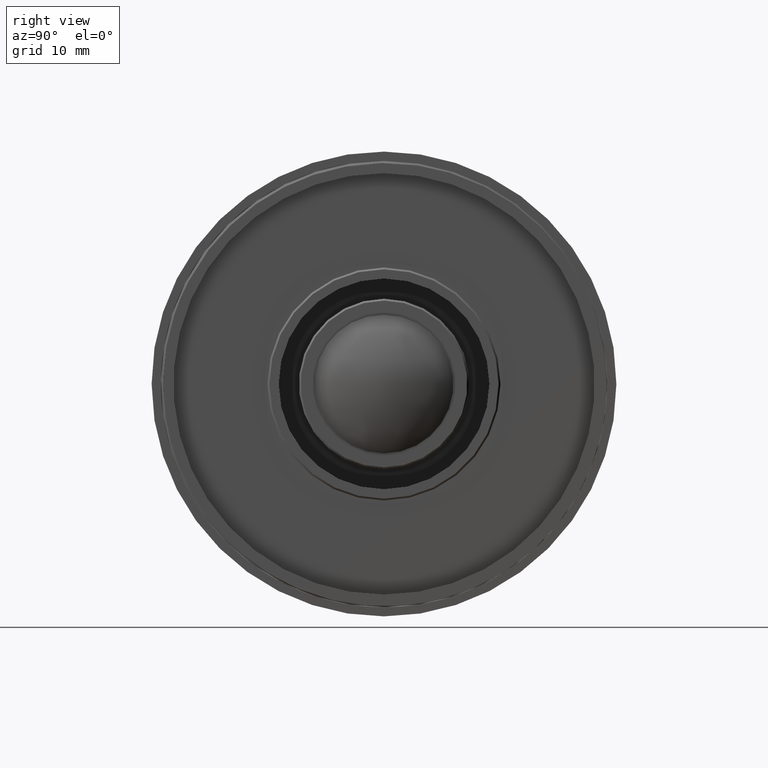
[diagram: clean part render]
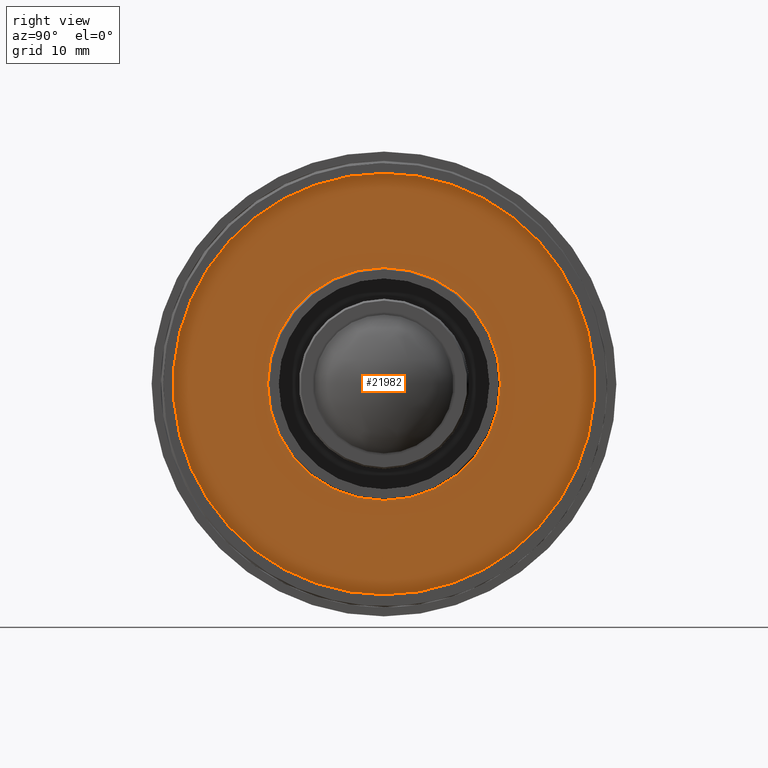
[diagram: same view with one face highlighted and labeled with its STEP entity id]
A machine part, right view. The second image highlights one B-rep face of the part: STEP entity #21982.
In plain terms, the highlighted planar face has unit normal (1, 0, 0).
Its self-contained STEP definition (entity closure, byte-faithful):
#598 = EDGE_LOOP ( 'NONE', ( #23516, #17043 ) ) ;
#5071 = CIRCLE ( 'NONE', #30091, 18.70000000000000284 ) ;
#6825 = DIRECTION ( 'NONE',  ( 1.000000000000000000, 0.0000000000000000000, 0.0000000000000000000 ) ) ;
#7680 = CARTESIAN_POINT ( 'NONE',  ( 50.32999999999999829, 0.0000000000000000000, -34.00000000000000000 ) ) ;
#8351 = CIRCLE ( 'NONE', #67088, 34.00000000000000000 ) ;
#12357 = CARTESIAN_POINT ( 'NONE',  ( 50.32999999999999829, 0.0000000000000000000, 0.0000000000000000000 ) ) ;
#15517 = DIRECTION ( 'NONE',  ( 0.0000000000000000000, 0.0000000000000000000, -1.000000000000000000 ) ) ;
#16522 = FACE_OUTER_BOUND ( 'NONE', #598, .T. ) ;
#17039 = AXIS2_PLACEMENT_3D ( 'NONE', #31855, #52631, #15517 ) ;
#17043 = ORIENTED_EDGE ( 'NONE', *, *, #39684, .T. ) ;
#17406 = ORIENTED_EDGE ( 'NONE', *, *, #21083, .T. ) ;
#18898 = EDGE_CURVE ( 'NONE', #28065, #21994, #67011, .T. ) ;
#21083 = EDGE_CURVE ( 'NONE', #47972, #54008, #55213, .T. ) ;
#21982 = ADVANCED_FACE ( 'NONE', ( #63497, #16522 ), #31174, .T. ) ;
#21994 = VERTEX_POINT ( 'NONE', #52952 ) ;
#22244 = DIRECTION ( 'NONE',  ( 1.000000000000000000, 0.0000000000000000000, 0.0000000000000000000 ) ) ;
#22573 = DIRECTION ( 'NONE',  ( 0.0000000000000000000, 0.0000000000000000000, -1.000000000000000000 ) ) ;
#23274 = ORIENTED_EDGE ( 'NONE', *, *, #45249, .T. ) ;
#23516 = ORIENTED_EDGE ( 'NONE', *, *, #18898, .T. ) ;
#25930 = CARTESIAN_POINT ( 'NONE',  ( 50.32999999999999829, 2.290089514405550899E-15, 18.70000000000000284 ) ) ;
#26038 = DIRECTION ( 'NONE',  ( -1.000000000000000000, -0.0000000000000000000, -0.0000000000000000000 ) ) ;
#28065 = VERTEX_POINT ( 'NONE', #7680 ) ;
#28187 = DIRECTION ( 'NONE',  ( -1.000000000000000000, -0.0000000000000000000, -0.0000000000000000000 ) ) ;
#28921 = CARTESIAN_POINT ( 'NONE',  ( 50.32999999999999829, 0.0000000000000000000, 0.0000000000000000000 ) ) ;
#29207 = CARTESIAN_POINT ( 'NONE',  ( 50.32999999999999829, 0.0000000000000000000, 0.0000000000000000000 ) ) ;
#30091 = AXIS2_PLACEMENT_3D ( 'NONE', #65208, #26038, #67241 ) ;
#31174 = PLANE ( 'NONE',  #17039 ) ;
#31855 = CARTESIAN_POINT ( 'NONE',  ( 50.32999999999999829, 0.0000000000000000000, 0.0000000000000000000 ) ) ;
#32755 = CARTESIAN_POINT ( 'NONE',  ( 50.32999999999999829, 0.0000000000000000000, -18.70000000000000284 ) ) ;
#33032 = DIRECTION ( 'NONE',  ( 0.0000000000000000000, 0.0000000000000000000, -1.000000000000000000 ) ) ;
#37631 = AXIS2_PLACEMENT_3D ( 'NONE', #28921, #6825, #33032 ) ;
#39684 = EDGE_CURVE ( 'NONE', #21994, #28065, #8351, .T. ) ;
#39819 = AXIS2_PLACEMENT_3D ( 'NONE', #29207, #28187, #64960 ) ;
#45249 = EDGE_CURVE ( 'NONE', #54008, #47972, #5071, .T. ) ;
#47972 = VERTEX_POINT ( 'NONE', #25930 ) ;
#52631 = DIRECTION ( 'NONE',  ( 1.000000000000000000, 0.0000000000000000000, 0.0000000000000000000 ) ) ;
#52952 = CARTESIAN_POINT ( 'NONE',  ( 50.32999999999999829, 4.163799117101000559E-15, 34.00000000000000000 ) ) ;
#54008 = VERTEX_POINT ( 'NONE', #32755 ) ;
#55213 = CIRCLE ( 'NONE', #39819, 18.70000000000000284 ) ;
#62196 = EDGE_LOOP ( 'NONE', ( #23274, #17406 ) ) ;
#63497 = FACE_BOUND ( 'NONE', #62196, .T. ) ;
#64960 = DIRECTION ( 'NONE',  ( 0.0000000000000000000, 0.0000000000000000000, -1.000000000000000000 ) ) ;
#65208 = CARTESIAN_POINT ( 'NONE',  ( 50.32999999999999829, 0.0000000000000000000, 0.0000000000000000000 ) ) ;
#67011 = CIRCLE ( 'NONE', #37631, 34.00000000000000000 ) ;
#67088 = AXIS2_PLACEMENT_3D ( 'NONE', #12357, #22244, #22573 ) ;
#67241 = DIRECTION ( 'NONE',  ( 0.0000000000000000000, 0.0000000000000000000, -1.000000000000000000 ) ) ;